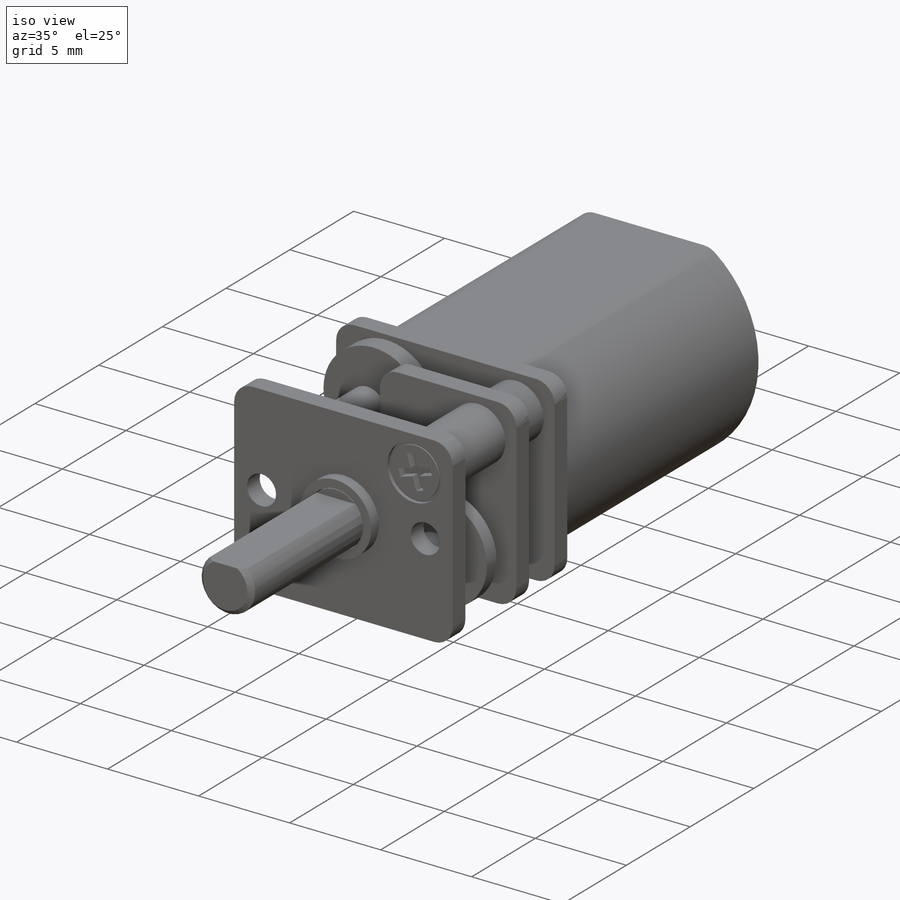
[diagram: iso view]
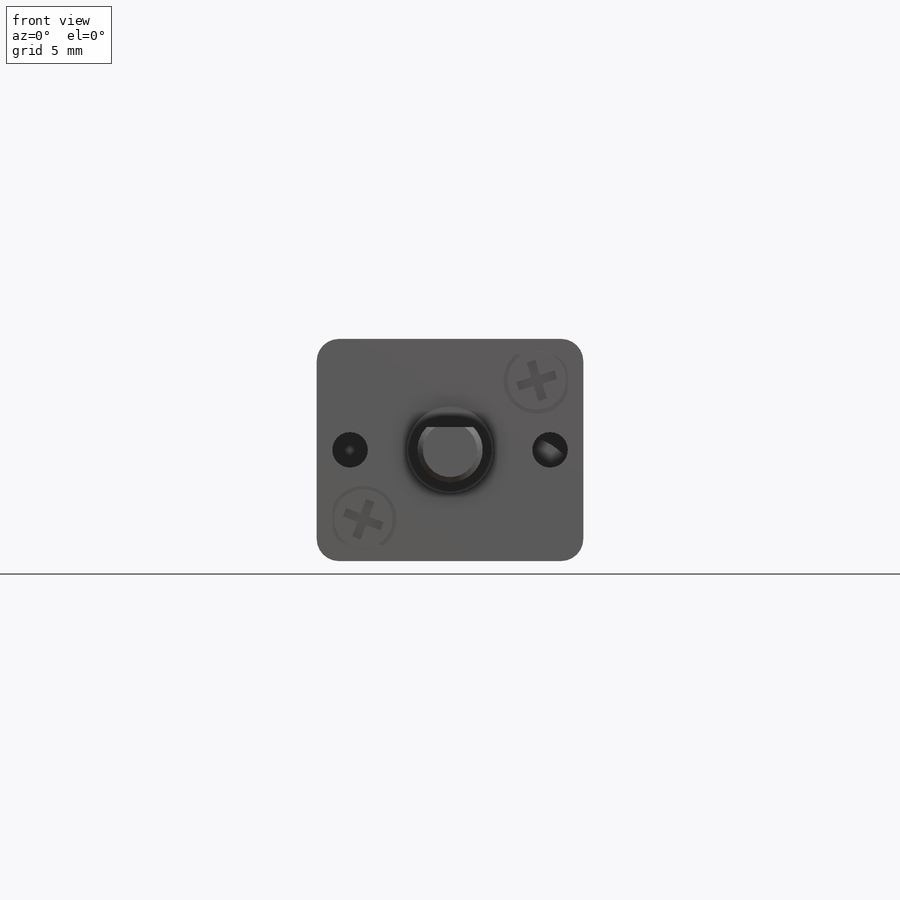
[diagram: front view]
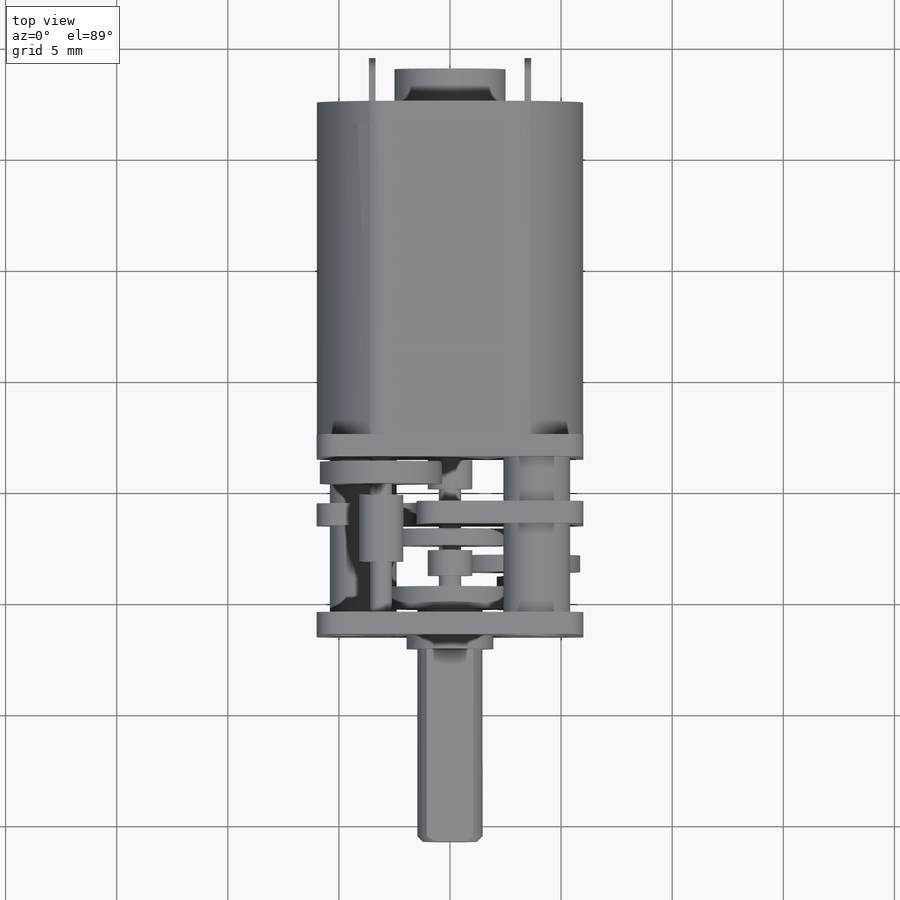
[diagram: top view]
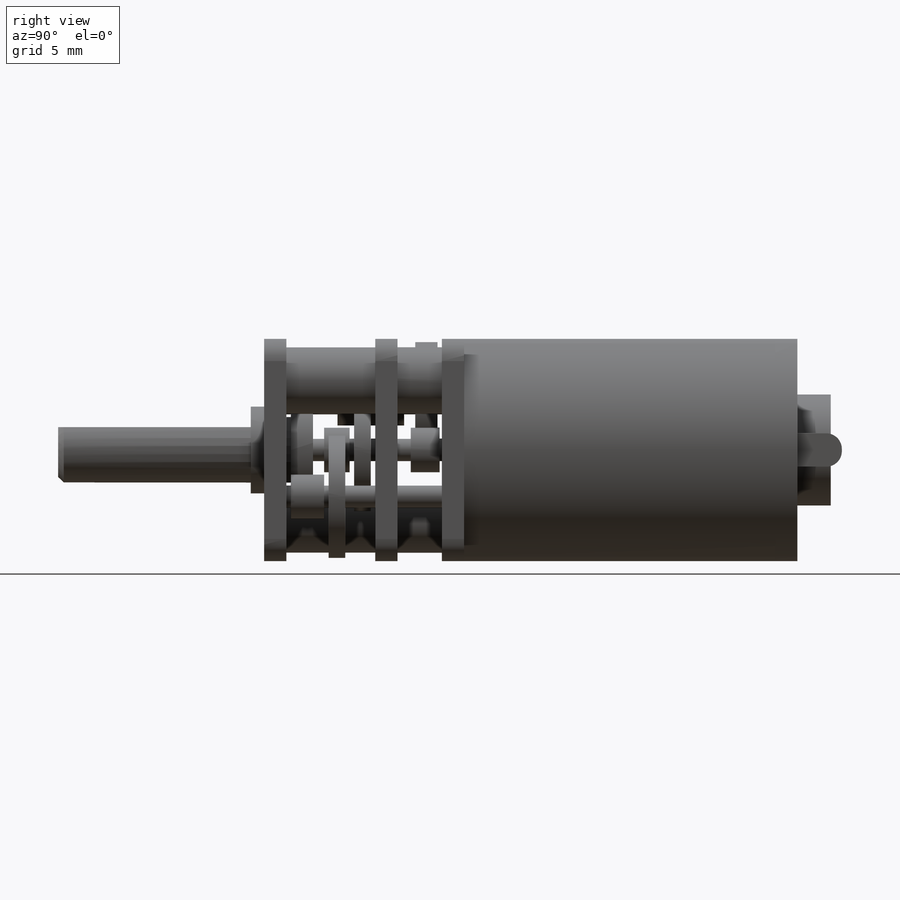
[diagram: right view]
SOLIDWORKS PART (.sldprt)
format: sldprt  version: not decoded by parser v0  size: 872,448 bytes
history: native  units: mm
features: sketch x32, extrude x19, cut_extrude x10, fillet x3, revolve x3, chamfer x2, material x1, plane x1 (+12 scaffold rows collapsed)
feature tree (83):
  scaffold x12  (default folders/planes/origin — collapsed)
  material  "Plain Carbon Steel"
  sketch  "Sketch1"  dims[D1=10.0mm D2=10.0mm]
  extrude  "Boss-Extrude1"  Depth=15mm
  fillet  "Fillet3"  Radius=1mm
  sketch  "Sketch2"  dims[D3=1.0mm D1=12.0mm D2=10.0mm]
  extrude  "Boss-Extrude2"  Depth=1mm
  extrude  "Boss-Extrude3"  [1 undecoded]
  sketch  "Sketch2<2>"  dims[D1=1.0mm D19=9.0mm]
  sketch  "Sketch7"  dims[D1=7.5mm D3=1.0mm D2=40.0deg]
  extrude  "Boss-Extrude5"  [1 undecoded]
  sketch  "Sketch11"  dims[D2=1.0mm D3=7.5mm D4=3.75mm D1=0.0mm]
  extrude  "Boss-Extrude8"  Depth=1mm
  sketch  "Sketch5"  dims[c1.D1=1.5mm c1.D2=0.76mm c1.D3=11.5mm c1.D4=1.5mm c2.D3=11.5mm]
  cut_extrude  "Cut-Extrude1"  [1 undecoded]
  sketch  "Sketch8"
  cut_extrude  "Cut-Extrude2"  Depth=1mm
  sketch  "Sketch9"  dims[D1=5.5mm D2=2.0mm]
  extrude  "Boss-Extrude6"  Depth=1mm
  extrude  "Boss-Extrude16"  [1 undecoded]
  sketch  "Sketch9<3>"  dims[D1=1.3mm D19=0.1mm]
  sketch  "Sketch6"  dims[D1=3.9mm]
  extrude  "Boss-Extrude4"  Depth=0.6mm
  sketch  "Sketch10"
  extrude  "Boss-Extrude7"  Depth=3mm
  sketch  "Sketch12"  dims[D1=3.0mm]
  extrude  "Boss-Extrude9"  [1 undecoded]
  extrude  "Boss-Extrude10"  [1 undecoded]
  sketch  "Sketch12<2>"
  sketch  "Sketch13"  dims[D1=3.0mm]
  cut_extrude  "Cut-Extrude3"  [1 undecoded]
  sketch  "Sketch14"  dims[D1=3.0mm]
  cut_extrude  "Cut-Extrude4"  Depth=0.2mm
  chamfer  "Chamfer1"  Distance=0.5mm Angle=45deg
  sketch  "Sketch15"
  extrude  "Boss-Extrude11"  Depth=0.75mm
  sketch  "Sketch16"
  extrude  "Boss-Extrude12"  Depth=1.15mm
  sketch  "Sketch17"
  extrude  "Boss-Extrude13"  Depth=0.75mm
  sketch  "Sketch18"
  extrude  "Boss-Extrude14"  Depth=1.5mm
  sketch  "Sketch19"
  cut_extrude  "Cut-Extrude5"  [1 undecoded]
  sketch  "Sketch20"
  extrude  "Boss-Extrude15"  Depth=1mm
  sketch  "Sketch21"  dims[D1=1.0mm]
  cut_extrude  "Cut-Extrude6"  [1 undecoded]
  sketch  "Sketch22"  dims[D1=1.0mm D2=2.94mm D3=9.27mm]
  revolve  "Revolve1"  Angle=360deg
  chamfer  "Chamfer2"  Distance=0.25mm Angle=45deg
  sketch  "Sketch23"  dims[D1=2.5mm]
  cut_extrude  "Cut-Extrude7"  [1 undecoded]
  sketch  "Sketch24"  dims[D3=1.6mm D1=4.5mm D2=9.0mm]
  cut_extrude  "Cut-Extrude8"  [1 undecoded]
  sketch  "Sketch25"  dims[D1=0.0mm]
  cut_extrude  "Cut-Extrude9"  Depth=1mm
  sketch  "Sketch26"  dims[D1=0.0mm]
  extrude  "Boss-Extrude17"  Depth=1mm
  sketch  "Sketch27"  dims[D1=5.0mm]
  extrude  "Boss-Extrude18"  Depth=1.5mm
  sketch  "Sketch28"  dims[D1=3.5mm D2=7.0mm D3=0.3mm D4=1.5mm]
  extrude  "Boss-Extrude19"  Depth=2mm
  fillet  "Fillet1"  Radius=0.7mm
  fillet  "Fillet2"  Radius=0.7mm
  plane  "Plane1"
  sketch  "Sketch29"  dims[c1.D1=~0.619745mm c2.D1=45.0deg c2.D2=1.4mm c2.D3=2.65mm c2.D4=0.05mm c2.D5=0.07mm]
  revolve  "Revolve2"  Angle=360deg
  revolve  "Revolve3"  [1 undecoded]
  sketch  "Sketch29<3>"  dims[D1=360.0deg]
  sketch  "Sketch30"  dims[D1=1.8mm D2=0.2mm D3=0.2mm D4=0.2mm D5=0.2mm]
  cut_extrude  "Cut-Extrude10"  Depth=0.4mm
decode coverage: 48 of 69 modeling features carry decoded parameters
note: ~ marks probable driven/reference dimensions
note: 12 parameter values undecoded
summary: no parameter record found for 12 features
note: suppression state not decoded; provenance and decode notes live in map.json
